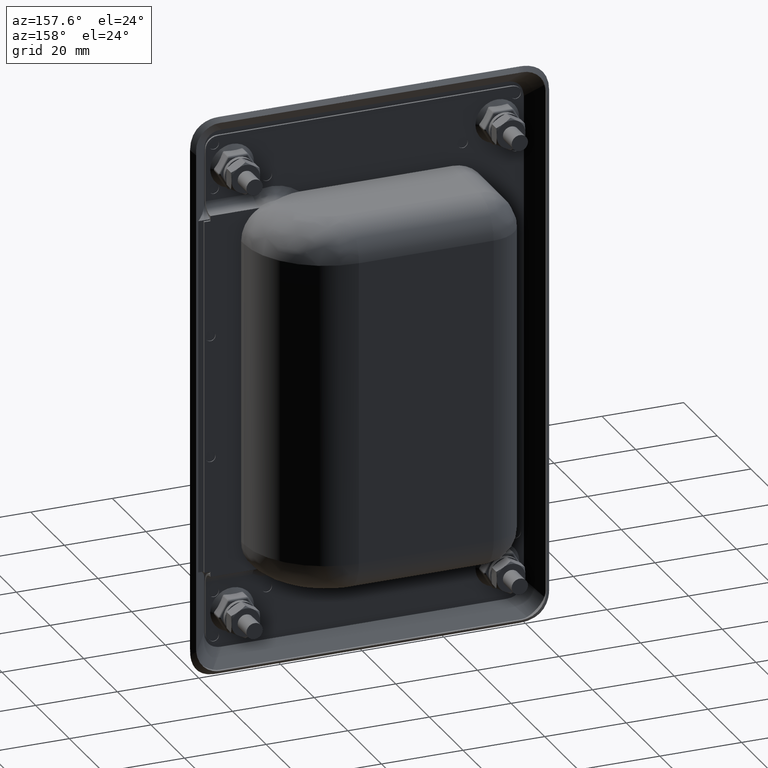
[diagram: clean part render]
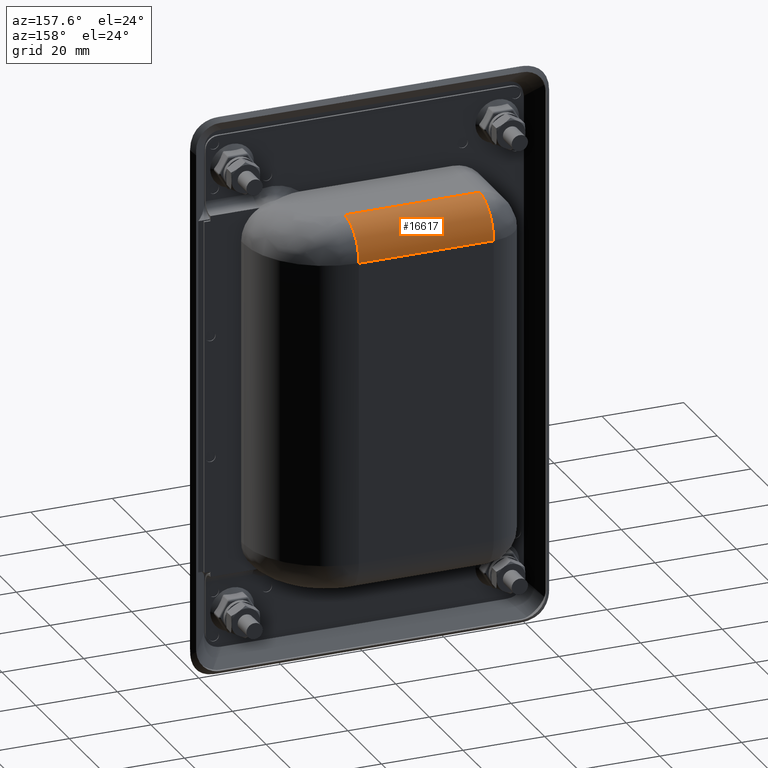
[diagram: same view with one face highlighted and labeled with its STEP entity id]
A machine part, auxiliary view. The second image highlights one B-rep face of the part: STEP entity #16617.
In plain terms, the highlighted face is a freeform B-spline surface patch.
Its self-contained STEP definition (entity closure, byte-faithful):
#16519=CARTESIAN_POINT('',(11.499999999512960,26.000000000162501,37.249999999956891));
#16520=VERTEX_POINT('',#16519);
#16521=CARTESIAN_POINT('',(11.499999999505659,17.500000000162501,45.749999999956891));
#16522=VERTEX_POINT('',#16521);
#16523=CARTESIAN_POINT('',(11.499999999512960,26.000000000162501,37.249999999956891));
#16524=CARTESIAN_POINT('',(11.499999999512530,26.000032190703781,37.736782370410552));
#16525=CARTESIAN_POINT('',(11.499999999511671,25.910193803708911,38.779891534047422));
#16526=CARTESIAN_POINT('',(11.499999999510420,25.518824128678940,40.194126102904093));
#16527=CARTESIAN_POINT('',(11.499999999509329,24.907615692138140,41.486341232494269));
#16528=CARTESIAN_POINT('',(11.499999999508461,24.223137633729721,42.497226979440413));
#16529=CARTESIAN_POINT('',(11.499999999507640,23.357555506000871,43.452258451252561));
#16530=CARTESIAN_POINT('',(11.499999999506869,22.278517617417599,44.337867333552843));
#16531=CARTESIAN_POINT('',(11.499999999506120,20.809323790492108,45.146582726765253));
#16532=CARTESIAN_POINT('',(11.499999999506000,19.168971173856811,45.644137702907102));
#16533=CARTESIAN_POINT('',(11.499999999505251,18.021548538302920,45.750038211319342));
#16534=CARTESIAN_POINT('',(11.499999999505659,17.500000000162501,45.749999999956891));
#16535=B_SPLINE_CURVE_WITH_KNOTS('',3,(#16523,#16524,#16525,#16526,#16527,#16528,#16529,#16530,#16531,#16532,#16533,#16534),.UNSPECIFIED.,.F.,.U.,(4,1,1,1,1,1,1,1,1,4),(0.000000149206109,1.460358058106346,3.129337104451317,4.381079533012304,5.737166003699678,6.780193177793201,8.240583625626037,9.909576780427729,11.787195277400230,13.351852554445291),.UNSPECIFIED.);
#16536=EDGE_CURVE('',#16520,#16522,#16535,.T.);
#16572=CARTESIAN_POINT('',(12.324999999477360,25.991909883608290,36.879235207352281));
#16573=CARTESIAN_POINT('',(-22.345624999013069,25.991909883608290,36.879235207322523));
#16574=CARTESIAN_POINT('',(12.324999999469188,26.407443173118367,46.396512247859455));
#16575=CARTESIAN_POINT('',(-22.345624999021240,26.407443173118367,46.396512247829683));
#16576=CARTESIAN_POINT('',(12.324999999469755,16.904506217792544,45.729114762428942));
#16577=CARTESIAN_POINT('',(-22.345624999020664,16.904506217792544,45.729114762399163));
#16585=(BOUNDED_SURFACE()B_SPLINE_SURFACE(1,2,((#16572,#16574,#16576),(#16573,#16575,#16577)),.UNSPECIFIED.,.F.,.F.,.U.)B_SPLINE_SURFACE_WITH_KNOTS((2,2),(3,3),(0.0,34.670624998490432),(0.0,15.229811588656890),.UNSPECIFIED.)GEOMETRIC_REPRESENTATION_ITEM()RATIONAL_B_SPLINE_SURFACE(((1.0,0.664513898535122,0.996233561259061),(1.0,0.664513898535122,0.996233561259061)))REPRESENTATION_ITEM('')SURFACE());
#16586=CARTESIAN_POINT('',(-21.499999999050200,26.000000000162501,37.249999999928598));
#16587=VERTEX_POINT('',#16586);
#16588=CARTESIAN_POINT('',(-21.499999999057501,17.500000000162501,45.749999999928598));
#16589=VERTEX_POINT('',#16588);
#16590=CARTESIAN_POINT('',(-21.499999999050200,26.000000000162501,37.249999999928598));
#16591=CARTESIAN_POINT('',(-21.499999999050608,26.000022216847778,37.736779736841001));
#16592=CARTESIAN_POINT('',(-21.499999999051600,25.901258172249250,38.884216708867299));
#16593=CARTESIAN_POINT('',(-21.499999999052950,25.433377798939730,40.461608649983091));
#16594=CARTESIAN_POINT('',(-21.499999999054090,24.725814302447919,41.785010718725772));
#16595=CARTESIAN_POINT('',(-21.499999999055071,23.937263925982069,42.848262485063607));
#16596=CARTESIAN_POINT('',(-21.499999999055770,23.024243369338969,43.761314001913078));
#16597=CARTESIAN_POINT('',(-21.499999999056548,21.774901240971250,44.652744445794440));
#16598=CARTESIAN_POINT('',(-21.499999999057330,19.968360360817609,45.493843928217572));
#16599=CARTESIAN_POINT('',(-21.499999999057369,18.438878259321040,45.750604687175198));
#16600=CARTESIAN_POINT('',(-21.499999999057501,17.500000000162501,45.749999999928598));
#16601=B_SPLINE_CURVE_WITH_KNOTS('',3,(#16590,#16591,#16592,#16593,#16594,#16595,#16596,#16597,#16598,#16599,#16600),.UNSPECIFIED.,.F.,.U.,(4,1,1,1,1,1,1,1,4),(0.000000149227883,1.460358058124767,3.442276658241276,4.902660914305184,5.945770230166569,7.406085608979381,8.762129889214542,10.535455903027460,13.351852554445120),.UNSPECIFIED.);
#16602=EDGE_CURVE('',#16587,#16589,#16601,.T.);
#16603=ORIENTED_EDGE('',*,*,#16602,.T.);
#16604=CARTESIAN_POINT('',(11.499999999505659,17.500000000162501,45.749999999956891));
#16605=CARTESIAN_POINT('',(-21.499999999057501,17.500000000162501,45.749999999928598));
#16606=QUASI_UNIFORM_CURVE('',1,(#16604,#16605),.UNSPECIFIED.,.F.,.U.);
#16607=EDGE_CURVE('',#16522,#16589,#16606,.T.);
#16608=ORIENTED_EDGE('',*,*,#16607,.F.);
#16609=ORIENTED_EDGE('',*,*,#16536,.F.);
#16610=CARTESIAN_POINT('',(-21.499999999050200,26.000000000162501,37.249999999928598));
#16611=CARTESIAN_POINT('',(11.499999999512960,26.000000000162501,37.249999999956891));
#16612=QUASI_UNIFORM_CURVE('',1,(#16610,#16611),.UNSPECIFIED.,.F.,.U.);
#16613=EDGE_CURVE('',#16587,#16520,#16612,.T.);
#16614=ORIENTED_EDGE('',*,*,#16613,.F.);
#16615=EDGE_LOOP('',(#16603,#16608,#16609,#16614));
#16616=FACE_OUTER_BOUND('',#16615,.T.);
#16617=ADVANCED_FACE('',(#16616),#16585,.T.);